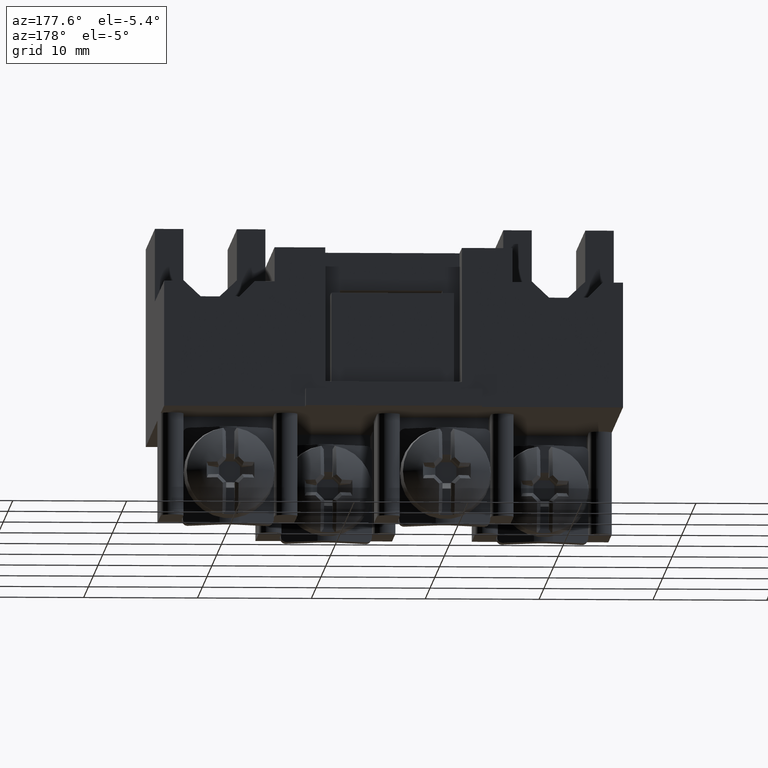
[diagram: clean part render]
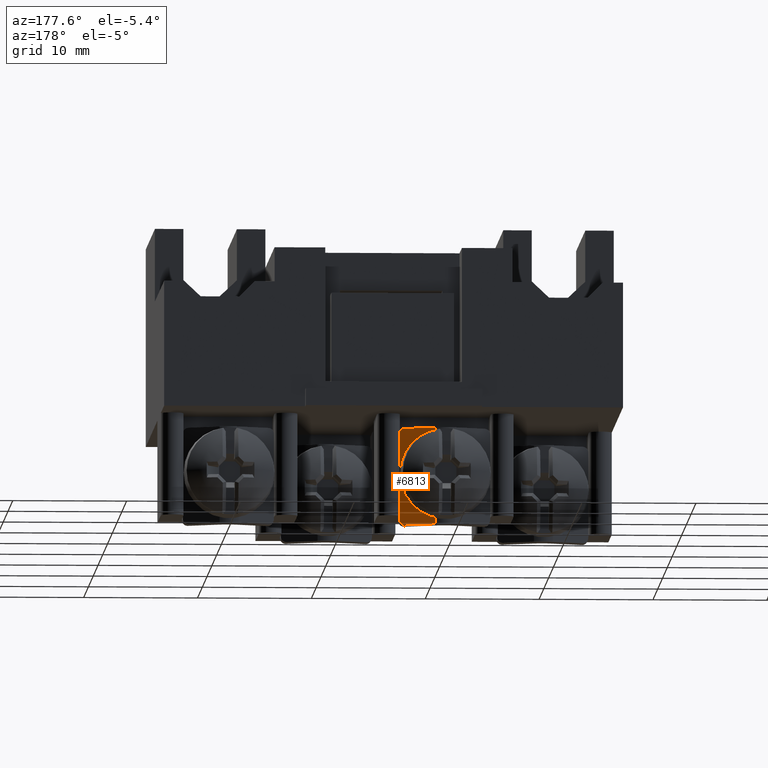
[diagram: same view with one face highlighted and labeled with its STEP entity id]
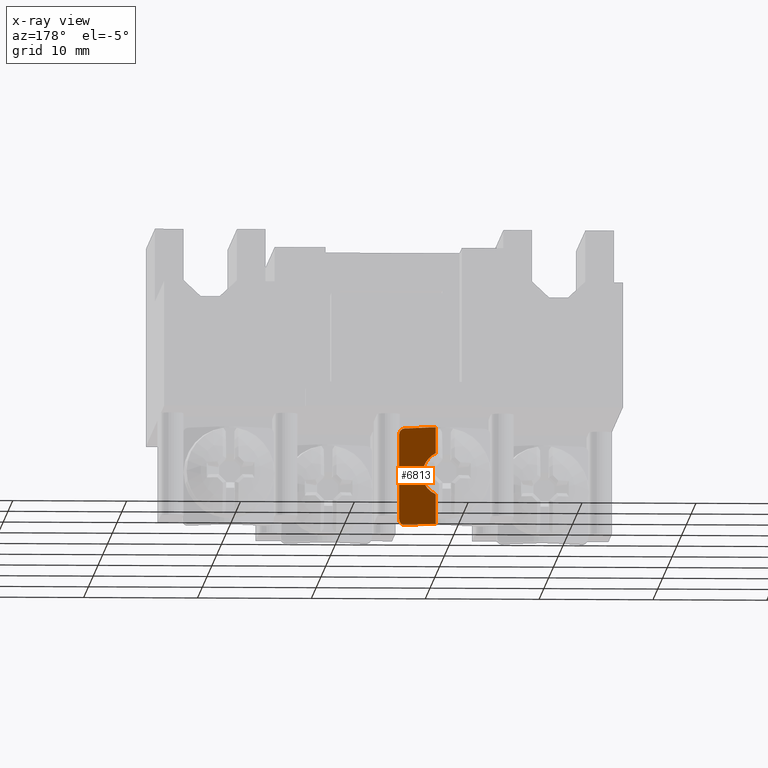
[diagram: x-ray of the same camera — body ghosted, the highlighted face saturated]
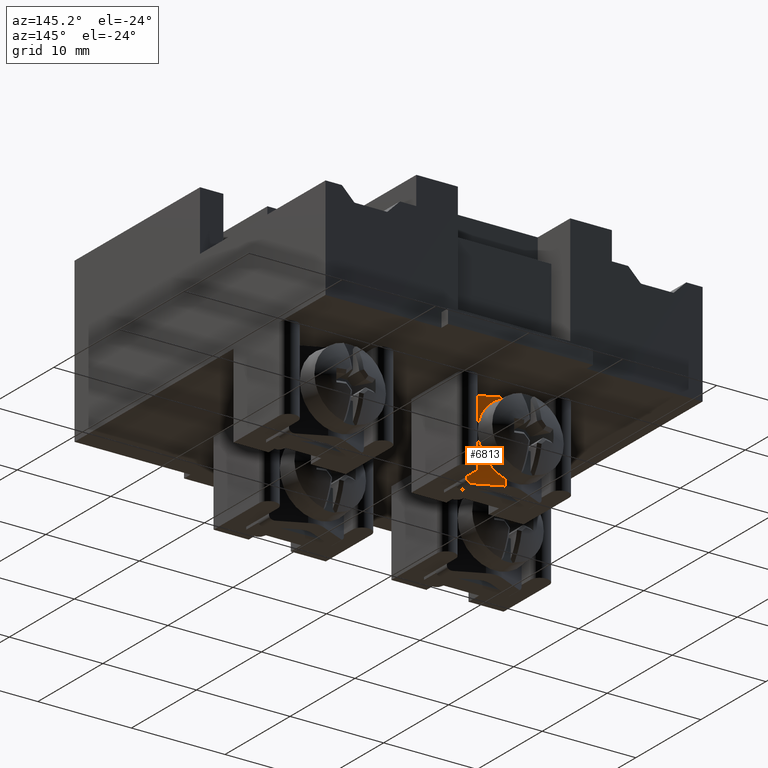
[diagram: same view with one face highlighted and labeled with its STEP entity id]
A machine part, auxiliary view. The second image highlights one B-rep face of the part: STEP entity #6813.
The next image is the same camera in x-ray: the body ghosted, the highlighted face saturated — about 0% of this face is hidden behind the body in this view.
A second angle (auxiliary view) of the same face is appended — the face is thin or edge-on in the first view.
In plain terms, the highlighted planar face has unit normal (0.4226, 0.9063, 0).
Its self-contained STEP definition (entity closure, byte-faithful):
#6492=CARTESIAN_POINT('',(-13.321991356594470,4.438901958275503,0.0));
#6493=VERTEX_POINT('',#6492);
#6501=CARTESIAN_POINT('',(-10.667227880075869,3.200965418584694,0.0));
#6502=VERTEX_POINT('',#6501);
#6503=CARTESIAN_POINT('',(-13.321991356594470,4.438901958275503,0.0));
#6504=DIRECTION('',(0.906307787036650,-0.422618261740699,0.0));
#6505=VECTOR('',#6504,2.929207400058723);
#6506=LINE('',#6503,#6505);
#6507=EDGE_CURVE('',#6493,#6502,#6506,.T.);
#6664=CARTESIAN_POINT('',(-10.667227880075869,3.200965418584694,8.500000000000000));
#6665=VERTEX_POINT('',#6664);
#6672=CARTESIAN_POINT('',(-13.321991356594470,4.438901958275503,8.500000000000000));
#6673=VERTEX_POINT('',#6672);
#6674=CARTESIAN_POINT('',(-13.321991356594470,4.438901958275503,8.500000000000000));
#6675=DIRECTION('',(0.906307787036650,-0.422618261740699,0.0));
#6676=VECTOR('',#6675,2.929207400058723);
#6677=LINE('',#6674,#6676);
#6678=EDGE_CURVE('',#6673,#6665,#6677,.T.);
#6746=CARTESIAN_POINT('',(-10.167227880075869,2.967811589507194,8.0));
#6747=VERTEX_POINT('',#6746);
#6754=CARTESIAN_POINT('',(-10.667227880075869,3.200965418584694,8.0));
#6755=DIRECTION('',(-0.422618261740699,-0.906307787036650,-6.162976E-033));
#6756=DIRECTION('',(0.906307787036650,-0.422618261740699,6.288774E-017));
#6757=AXIS2_PLACEMENT_3D('',#6754,#6755,#6756);
#6758=ELLIPSE('',#6757,0.551688959481246,0.500000000000000);
#6759=EDGE_CURVE('',#6747,#6665,#6758,.T.);
#6765=CARTESIAN_POINT('',(-13.321991356594470,4.438901958275503,0.0));
#6766=DIRECTION('',(0.422618261740699,0.906307787036650,0.0));
#6767=DIRECTION('',(0.0,0.0,1.0));
#6768=AXIS2_PLACEMENT_3D('',#6765,#6766,#6767);
#6769=PLANE('',#6768);
#6770=ORIENTED_EDGE('',*,*,#6759,.F.);
#6771=CARTESIAN_POINT('',(-10.167227880075869,2.967811589507194,0.500000000000000));
#6772=VERTEX_POINT('',#6771);
#6773=CARTESIAN_POINT('',(-10.167227880075869,2.967811589507194,0.500000000000000));
#6774=DIRECTION('',(0.0,0.0,1.0));
#6775=VECTOR('',#6774,7.500000000000000);
#6776=LINE('',#6773,#6775);
#6777=EDGE_CURVE('',#6772,#6747,#6776,.T.);
#6778=ORIENTED_EDGE('',*,*,#6777,.F.);
#6779=CARTESIAN_POINT('',(-10.667227880075869,3.200965418584694,0.500000000000000));
#6780=DIRECTION('',(-0.422618261740699,-0.906307787036650,2.465190E-032));
#6781=DIRECTION('',(0.906307787036650,-0.422618261740699,-4.402142E-016));
#6782=AXIS2_PLACEMENT_3D('',#6779,#6780,#6781);
#6783=ELLIPSE('',#6782,0.551688959481246,0.500000000000000);
#6784=EDGE_CURVE('',#6502,#6772,#6783,.T.);
#6785=ORIENTED_EDGE('',*,*,#6784,.F.);
#6786=ORIENTED_EDGE('',*,*,#6507,.F.);
#6787=CARTESIAN_POINT('',(-13.321991356594470,4.438901958275503,2.587384425926700));
#6788=VERTEX_POINT('',#6787);
#6789=CARTESIAN_POINT('',(-13.321991356594470,4.438901958275503,0.0));
#6790=DIRECTION('',(0.0,0.0,1.0));
#6791=VECTOR('',#6790,2.587384425926700);
#6792=LINE('',#6789,#6791);
#6793=EDGE_CURVE('',#6493,#6788,#6792,.T.);
#6794=ORIENTED_EDGE('',*,*,#6793,.T.);
#6795=CARTESIAN_POINT('',(-13.321991356594470,4.438901958275503,6.212615574073301));
#6796=VERTEX_POINT('',#6795);
#6797=CARTESIAN_POINT('',(-14.167227880075867,4.833042222127186,4.400000000000000));
#6798=DIRECTION('',(-0.422618261740699,-0.906307787036650,0.0));
#6799=DIRECTION('',(0.906307787036650,-0.422618261740699,0.0));
#6800=AXIS2_PLACEMENT_3D('',#6797,#6798,#6799);
#6801=ELLIPSE('',#6800,2.206755837924983,2.0);
#6802=EDGE_CURVE('',#6788,#6796,#6801,.T.);
#6803=ORIENTED_EDGE('',*,*,#6802,.T.);
#6804=CARTESIAN_POINT('',(-13.321991356594470,4.438901958275503,6.212615574073301));
#6805=DIRECTION('',(0.0,0.0,1.0));
#6806=VECTOR('',#6805,2.287384425926699);
#6807=LINE('',#6804,#6806);
#6808=EDGE_CURVE('',#6796,#6673,#6807,.T.);
#6809=ORIENTED_EDGE('',*,*,#6808,.T.);
#6810=ORIENTED_EDGE('',*,*,#6678,.T.);
#6811=EDGE_LOOP('',(#6770,#6778,#6785,#6786,#6794,#6803,#6809,#6810));
#6812=FACE_OUTER_BOUND('',#6811,.T.);
#6813=ADVANCED_FACE('',(#6812),#6769,.T.);